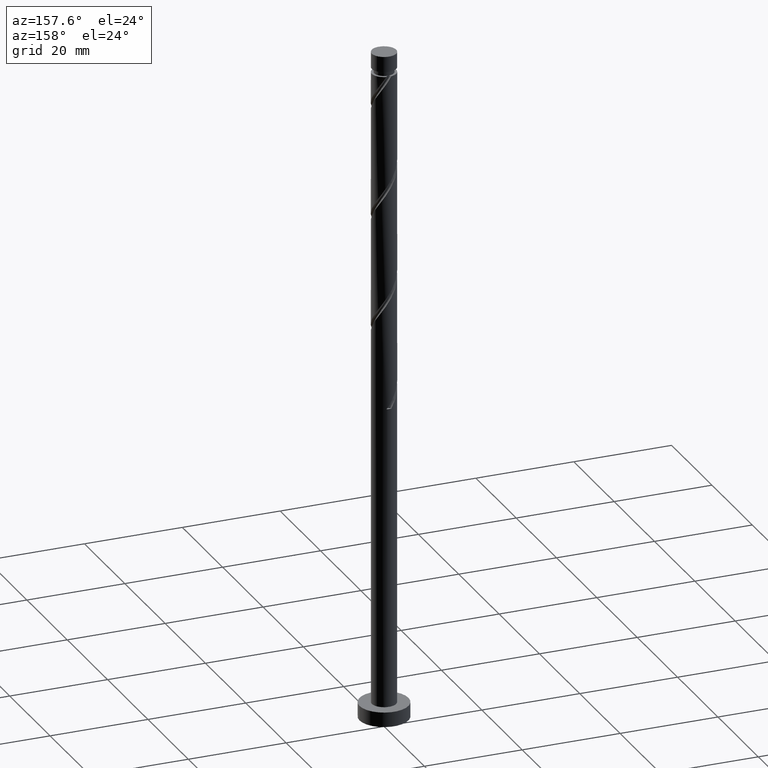
[diagram: clean part render]
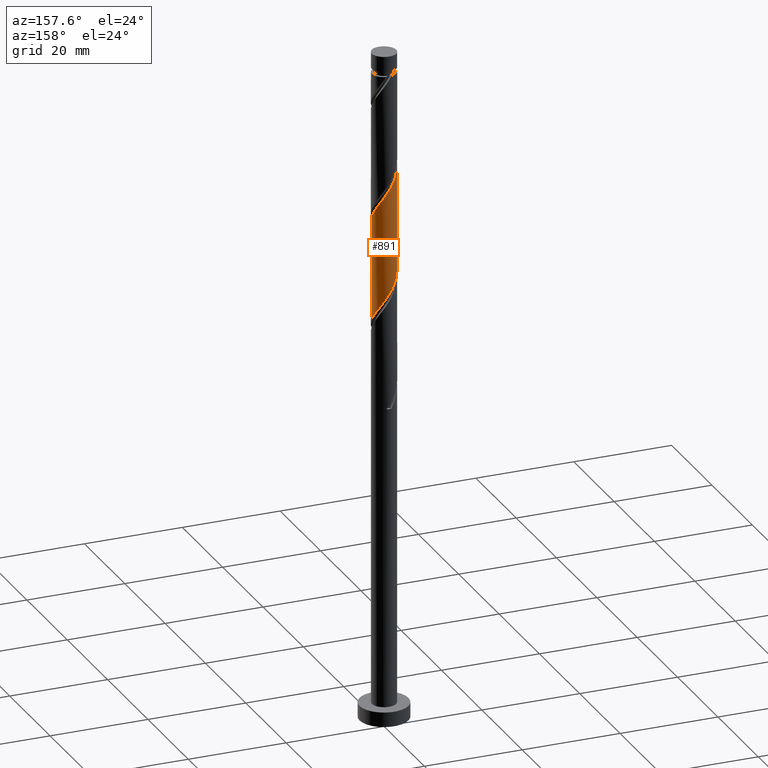
[diagram: same view with one face highlighted and labeled with its STEP entity id]
A machine part, auxiliary view. The second image highlights one B-rep face of the part: STEP entity #891.
In plain terms, the highlighted cylindrical surface (edge-blend (fillet) strip) has radius 2.5 mm, axis along (-0, -0, -1).
Its self-contained STEP definition (entity closure, byte-faithful):
#51 = CARTESIAN_POINT ( 'NONE',  ( 2.450000000000003286, 0.4974937185533108153, 104.6794563204738324 ) ) ;
#58 = CARTESIAN_POINT ( 'NONE',  ( 1.397840163920917256, 2.110172521261066692, 107.5436229871404663 ) ) ;
#90 = CARTESIAN_POINT ( 'NONE',  ( -0.2839469933725872752, 2.483822478550883783, 88.64012298714044391 ) ) ;
#98 = CARTESIAN_POINT ( 'NONE',  ( -0.6773458265033717174, 2.438849692923733326, 89.21295632047377921 ) ) ;
#112 = CARTESIAN_POINT ( 'NONE',  ( -1.037592995212142988, 2.274511107092398010, 89.78578965380712873 ) ) ;
#141 = LINE ( 'NONE', #368, #480 ) ;
#156 = CARTESIAN_POINT ( 'NONE',  ( 0.000000000000000000, 0.000000000000000000, 137.4799999999999898 ) ) ;
#177 = CARTESIAN_POINT ( 'NONE',  ( -0.1094518397581961400, 2.528795264178041791, 109.8349563204738217 ) ) ;
#189 = CARTESIAN_POINT ( 'NONE',  ( 1.689672165344846100, 1.842554741020976605, 106.9707896538071310 ) ) ;
#216 = CARTESIAN_POINT ( 'NONE',  ( -1.689672165344841659, 1.842554741020973719, 90.93145632047378513 ) ) ;
#219 = DIRECTION ( 'NONE',  ( -0.000000000000000000, -0.000000000000000000, -1.000000000000000000 ) ) ;
#224 = CARTESIAN_POINT ( 'NONE',  ( 0.8855355973484250187, 2.371204735821960785, 86.92162298714045221 ) ) ;
#239 = DIRECTION ( 'NONE',  ( -0.000000000000000000, -0.000000000000000000, -1.000000000000000000 ) ) ;
#290 = CARTESIAN_POINT ( 'NONE',  ( -2.500000000000000000, 0.000000000000000000, 137.4799999999999898 ) ) ;
#297 = CARTESIAN_POINT ( 'NONE',  ( -2.500000000000004441, 0.1424343436160736276, 115.1965147935601124 ) ) ;
#354 = CARTESIAN_POINT ( 'NONE',  ( 2.499999999999999112, 2.818703323242682982E-15, 82.49729930436710390 ) ) ;
#368 = CARTESIAN_POINT ( 'NONE',  ( 2.500000000000000000, 3.061616997868383141E-16, 137.4799999999999898 ) ) ;
#417 = CARTESIAN_POINT ( 'NONE',  ( 2.500000000000003553, 2.803710220459456568E-15, 103.9482800032471630 ) ) ;
#418 = CARTESIAN_POINT ( 'NONE',  ( -2.500000000000003109, 1.619255100586209936E-15, 115.4049466699138264 ) ) ;
#429 = VERTEX_POINT ( 'NONE', #417 ) ;
#432 = FACE_OUTER_BOUND ( 'NONE', #1544, .T. ) ;
#446 = CARTESIAN_POINT ( 'NONE',  ( 2.438849692923732881, 0.6773458265033714953, 83.48462298714044039 ) ) ;
#469 = CARTESIAN_POINT ( 'NONE',  ( 0.1094518397581970837, 2.528795264178037794, 88.06728965380712282 ) ) ;
#480 = VECTOR ( 'NONE', #239, 1000.000000000000000 ) ;
#509 = ORIENTED_EDGE ( 'NONE', *, *, #1459, .T. ) ;
#524 = CARTESIAN_POINT ( 'NONE',  ( 2.500000000000003109, 0.2512594538148048007, 104.3159615474637434 ) ) ;
#557 = CARTESIAN_POINT ( 'NONE',  ( -2.274511107092403339, 1.037592995212145430, 113.8447896538071689 ) ) ;
#571 = CARTESIAN_POINT ( 'NONE',  ( 0.4974937185533112594, 2.449999999999998401, 87.49445632047378751 ) ) ;
#596 =( BOUNDED_CURVE ( )  B_SPLINE_CURVE ( 2, ( #814, #1201, #1178, #1560, #1571, #684, #216, #1319, #112, #98, #90, #469, #571, #224, #1433, #962, #702, #1429, #1296, #446, #832, #1449, #354 ),
 .UNSPECIFIED., .F., .T. ) 
 B_SPLINE_CURVE_WITH_KNOTS ( ( 3, 2, 2, 2, 2, 2, 2, 2, 2, 2, 2, 3 ),
 ( 0.6795322023138550271, 0.6875000000000000000, 0.6999999999999999556, 0.7125000000000000222, 0.7249999999999999778, 0.7375000000000000444, 0.7500000000000000000, 0.7624999999999999556, 0.7750000000000000222, 0.7874999999999999778, 0.8000000000000000444, 0.8045322023138552492 ),
 .UNSPECIFIED. ) 
 CURVE ( )  GEOMETRIC_REPRESENTATION_ITEM ( )  RATIONAL_B_SPLINE_CURVE ( ( 0.9039174447099376231, 0.9019565955404666990, 0.9090909090909153889, 0.8978984914501313419, 0.9090909090909153889, 0.8978984914501313419, 0.9090909090909153889, 0.8978984914501313419, 0.9090909090909153889, 0.8978984914501313419, 0.9090909090909153889, 0.8978984914501313419, 0.9090909090909153889, 0.8978984914501313419, 0.9090909090909153889, 0.8978984914501313419, 0.9090909090909153889, 0.8978984914501313419, 0.9090909090909153889, 0.8978984914501313419, 0.9090909090909153889, 0.9050328050005796987, 0.9039174447099376231 ) ) 
 REPRESENTATION_ITEM ( '' )  );
#648 = CARTESIAN_POINT ( 'NONE',  ( 2.371204735821965226, 0.8855355973484252408, 105.2522896538071393 ) ) ;
#662 = CARTESIAN_POINT ( 'NONE',  ( 0.6773458265033739378, 2.438849692923737766, 108.6892896538071653 ) ) ;
#667 = DIRECTION ( 'NONE',  ( -0.000000000000000000, -0.000000000000000000, -1.000000000000000000 ) ) ;
#684 = CARTESIAN_POINT ( 'NONE',  ( -1.981504166768769837, 1.574936960780883632, 91.50428965380713464 ) ) ;
#702 = CARTESIAN_POINT ( 'NONE',  ( 1.842554741020974163, 1.689672165344841437, 85.20312298714046051 ) ) ;
#742 = CARTESIAN_POINT ( 'NONE',  ( -2.499999999999999112, -3.118565378906798285E-15, 93.95396597103379577 ) ) ;
#773 = CARTESIAN_POINT ( 'NONE',  ( -0.4974937185533105932, 2.450000000000003286, 110.4077896538071428 ) ) ;
#783 = CARTESIAN_POINT ( 'NONE',  ( 2.500000000000003553, 2.803710220459456568E-15, 103.9482800032471630 ) ) ;
#812 = VECTOR ( 'NONE', #667, 1000.000000000000000 ) ;
#814 = CARTESIAN_POINT ( 'NONE',  ( -2.499999999999999112, -3.118565378906798285E-15, 93.95396597103379577 ) ) ;
#821 = EDGE_CURVE ( 'NONE', #1070, #1505, #902, .T. ) ;
#832 = CARTESIAN_POINT ( 'NONE',  ( 2.483822478550884671, 0.2839469933725869422, 82.91178965380711929 ) ) ;
#891 = ADVANCED_FACE ( 'NONE', ( #432 ), #1015, .T. ) ;
#898 = CARTESIAN_POINT ( 'NONE',  ( 2.176354451295370307, 1.230236279064655491, 105.8251229871404888 ) ) ;
#902 = LINE ( 'NONE', #290, #812 ) ;
#908 = CARTESIAN_POINT ( 'NONE',  ( -1.574936960780886297, 1.981504166768773612, 112.1262896538071345 ) ) ;
#916 = CARTESIAN_POINT ( 'NONE',  ( 1.981504166768774056, 1.574936960780886075, 106.3979563204738099 ) ) ;
#929 = CARTESIAN_POINT ( 'NONE',  ( -2.110172521261067580, 1.397840163920917256, 113.2719563204737909 ) ) ;
#962 = CARTESIAN_POINT ( 'NONE',  ( 1.574936960780884299, 1.981504166768769837, 85.77595632047378160 ) ) ;
#1015 = CYLINDRICAL_SURFACE ( 'NONE', #1215, 2.500000000000000000 ) ;
#1019 = CARTESIAN_POINT ( 'NONE',  ( -1.230236279064655935, 2.176354451295369863, 111.5534563204738276 ) ) ;
#1037 = CARTESIAN_POINT ( 'NONE',  ( 1.037592995212145874, 2.274511107092402451, 108.1164563204738016 ) ) ;
#1054 = ORIENTED_EDGE ( 'NONE', *, *, #821, .F. ) ;
#1070 = VERTEX_POINT ( 'NONE', #418 ) ;
#1086 = EDGE_CURVE ( 'NONE', #429, #1070, #1099, .T. ) ;
#1099 =( BOUNDED_CURVE ( )  B_SPLINE_CURVE ( 2, ( #783, #524, #51, #648, #898, #916, #189, #58, #1037, #662, #1267, #177, #773, #1516, #1019, #908, #1383, #929, #557, #1392, #1532, #297, #1372 ),
 .UNSPECIFIED., .F., .T. ) 
 B_SPLINE_CURVE_WITH_KNOTS ( ( 3, 2, 2, 2, 2, 2, 2, 2, 2, 2, 2, 3 ),
 ( 0.4295322023138552492, 0.4375000000000000000, 0.4499999999999999556, 0.4625000000000000222, 0.4749999999999999778, 0.4875000000000000444, 0.5000000000000000000, 0.5124999999999999556, 0.5250000000000000222, 0.5374999999999999778, 0.5500000000000000444, 0.5545322023138554712 ),
 .UNSPECIFIED. ) 
 CURVE ( )  GEOMETRIC_REPRESENTATION_ITEM ( )  RATIONAL_B_SPLINE_CURVE ( ( 0.9039174447099442844, 0.9019565955404736934, 0.9090909090909222723, 0.8978984914501381143, 0.9090909090909222723, 0.8978984914501381143, 0.9090909090909222723, 0.8978984914501381143, 0.9090909090909222723, 0.8978984914501381143, 0.9090909090909222723, 0.8978984914501381143, 0.9090909090909222723, 0.8978984914501381143, 0.9090909090909222723, 0.8978984914501381143, 0.9090909090909222723, 0.8978984914501381143, 0.9090909090909222723, 0.8978984914501381143, 0.9090909090909222723, 0.9050328050005863600, 0.9039174447099442844 ) ) 
 REPRESENTATION_ITEM ( '' )  );
#1123 = ORIENTED_EDGE ( 'NONE', *, *, #1225, .F. ) ;
#1178 = CARTESIAN_POINT ( 'NONE',  ( -2.449999999999998401, 0.4974937185533108153, 93.22278965380709792 ) ) ;
#1201 = CARTESIAN_POINT ( 'NONE',  ( -2.500000000000000444, 0.2512594538147984724, 93.58628442681722959 ) ) ;
#1215 = AXIS2_PLACEMENT_3D ( 'NONE', #156, #219, #1537 ) ;
#1225 = EDGE_CURVE ( 'NONE', #1505, #1233, #596, .T. ) ;
#1233 = VERTEX_POINT ( 'NONE', #1310 ) ;
#1267 = CARTESIAN_POINT ( 'NONE',  ( 0.2839469933725889961, 2.483822478550889112, 109.2621229871404722 ) ) ;
#1296 = CARTESIAN_POINT ( 'NONE',  ( 2.274511107092398010, 1.037592995212142322, 84.05745632047378990 ) ) ;
#1310 = CARTESIAN_POINT ( 'NONE',  ( 2.499999999999999112, 2.818703323242682982E-15, 82.49729930436710390 ) ) ;
#1319 = CARTESIAN_POINT ( 'NONE',  ( -1.397840163920914147, 2.110172521261064027, 90.35862298714044982 ) ) ;
#1372 = CARTESIAN_POINT ( 'NONE',  ( -2.500000000000003109, 1.619255100586210134E-15, 115.4049466699138264 ) ) ;
#1373 = ORIENTED_EDGE ( 'NONE', *, *, #1086, .F. ) ;
#1383 = CARTESIAN_POINT ( 'NONE',  ( -1.842554741020976605, 1.689672165344845656, 112.6991229871404698 ) ) ;
#1392 = CARTESIAN_POINT ( 'NONE',  ( -2.438849692923737766, 0.6773458265033734937, 114.4176229871404900 ) ) ;
#1429 = CARTESIAN_POINT ( 'NONE',  ( 2.110172521261064027, 1.397840163920913259, 84.63028965380712521 ) ) ;
#1433 = CARTESIAN_POINT ( 'NONE',  ( 1.230236279064654381, 2.176354451295364534, 86.34878965380710270 ) ) ;
#1449 = CARTESIAN_POINT ( 'NONE',  ( 2.499999999999999112, 0.1424343436160793175, 82.70573118072083219 ) ) ;
#1459 = EDGE_CURVE ( 'NONE', #429, #1233, #141, .T. ) ;
#1505 = VERTEX_POINT ( 'NONE', #742 ) ;
#1516 = CARTESIAN_POINT ( 'NONE',  ( -0.8855355973484256848, 2.371204735821965226, 110.9806229871404497 ) ) ;
#1532 = CARTESIAN_POINT ( 'NONE',  ( -2.483822478550889112, 0.2839469933725885520, 114.9904563204738253 ) ) ;
#1537 = DIRECTION ( 'NONE',  ( -1.000000000000000000, 0.000000000000000000, 0.000000000000000000 ) ) ;
#1544 = EDGE_LOOP ( 'NONE', ( #1373, #509, #1123, #1054 ) ) ;
#1560 = CARTESIAN_POINT ( 'NONE',  ( -2.371204735821960785, 0.8855355973484245746, 92.64995632047379104 ) ) ;
#1571 = CARTESIAN_POINT ( 'NONE',  ( -2.176354451295364978, 1.230236279064653715, 92.07712298714044152 ) ) ;